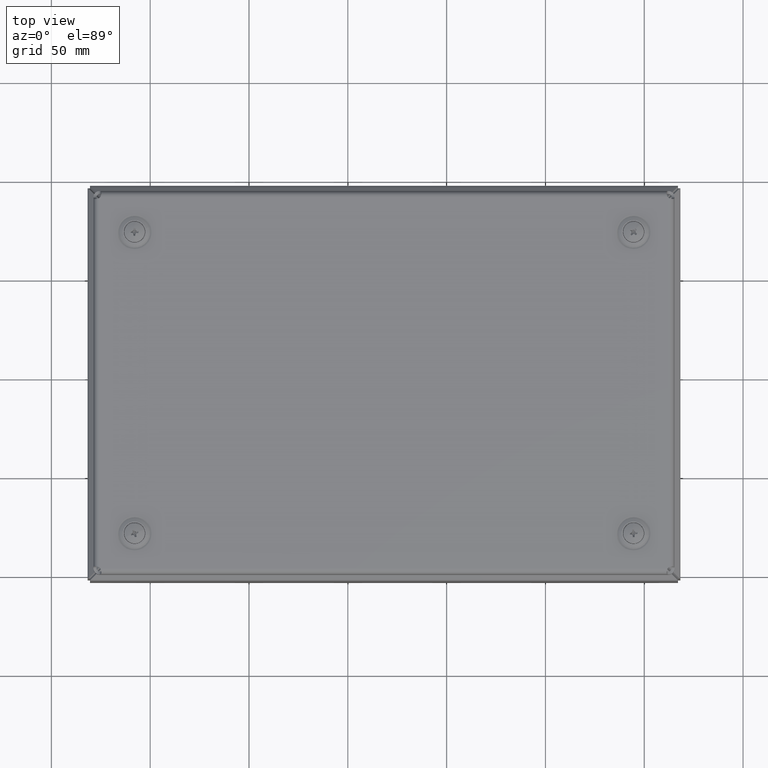
[diagram: clean part render]
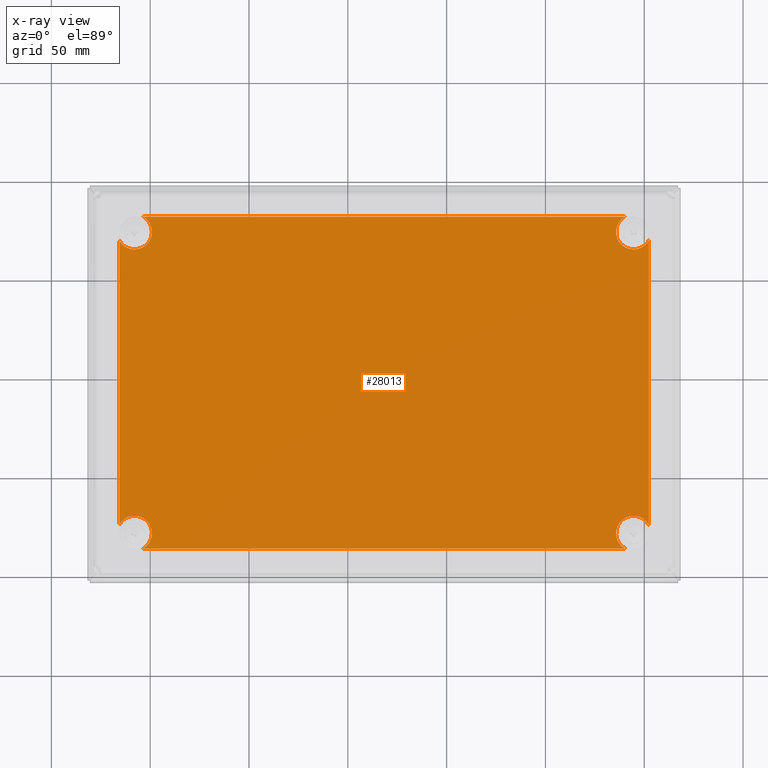
[diagram: x-ray — body ghosted, one internal face saturated and labeled with its STEP entity id]
A machine part, top view, then the same camera in x-ray: the body is ghosted and one INTERNAL B-rep face — a face not visible from any outside direction — is saturated and labeled: STEP entity #28013.
In plain terms, the highlighted planar face has unit normal (0, 0, -1).
Its self-contained STEP definition (entity closure, byte-faithful):
#1873 = CARTESIAN_POINT ( 'NONE',  ( -133.9999999999999400, 72.04468338631409100, 1.500000000000000000 ) ) ;
#1874 = DIRECTION ( 'NONE',  ( 0.0000000000000000000, -1.000000000000000000, 0.0000000000000000000 ) ) ;
#1875 = VECTOR ( 'NONE', #1874, 1000.000000000000000 ) ;
#1876 = CARTESIAN_POINT ( 'NONE',  ( -133.9999999999999400, 79.00000000000001400, 1.499999999999903400 ) ) ;
#1877 = LINE ( 'NONE', #1876, #1875 ) ;
#2042 = CARTESIAN_POINT ( 'NONE',  ( -126.2500000000000300, -76.24999999999998600, 1.500000000000000000 ) ) ;
#2063 = CARTESIAN_POINT ( 'NONE',  ( 126.2500000000000300, -67.43256342118972700, 1.499999999971578300 ) ) ;
#2069 = CARTESIAN_POINT ( 'NONE',  ( -133.9999999999999400, -72.04468338631411900, 1.500000000000000000 ) ) ;
#2075 = DIRECTION ( 'NONE',  ( 1.000000000000000000, 0.0000000000000000000, 0.0000000000000000000 ) ) ;
#2076 = DIRECTION ( 'NONE',  ( 0.0000000000000000000, 0.0000000000000000000, 1.000000000000000000 ) ) ;
#2090 = AXIS2_PLACEMENT_3D ( 'NONE', #2042, #2076, #2075 ) ;
#2091 = CIRCLE ( 'NONE', #2090, 8.817436578810260900 ) ;
#2163 = CARTESIAN_POINT ( 'NONE',  ( -126.2500000000000300, -67.43256342118972700, 1.499999999971578300 ) ) ;
#2164 = DIRECTION ( 'NONE',  ( 1.000000000000000000, 0.0000000000000000000, 0.0000000000000000000 ) ) ;
#2165 = VECTOR ( 'NONE', #2164, 1000.000000000000000 ) ;
#2166 = CARTESIAN_POINT ( 'NONE',  ( -128.9999999999998900, -83.99999999999998600, 1.499999999999903400 ) ) ;
#2167 = LINE ( 'NONE', #2166, #2165 ) ;
#2168 = DIRECTION ( 'NONE',  ( 1.000000000000000000, 0.0000000000000000000, 0.0000000000000000000 ) ) ;
#2169 = DIRECTION ( 'NONE',  ( 0.0000000000000000000, 0.0000000000000000000, 1.000000000000000000 ) ) ;
#2170 = CARTESIAN_POINT ( 'NONE',  ( -159.9999999999999700, -109.9999999999999900, 1.500000000000000000 ) ) ;
#2171 = AXIS2_PLACEMENT_3D ( 'NONE', #2170, #2169, #2168 ) ;
#2173 = PLANE ( 'NONE',  #2171 ) ;
#2174 = FACE_OUTER_BOUND ( 'NONE', #28015, .T. ) ;
#2276 = DIRECTION ( 'NONE',  ( 0.0000000000000000000, 0.0000000000000000000, 1.000000000000000000 ) ) ;
#2277 = CARTESIAN_POINT ( 'NONE',  ( 126.2500000000000300, -76.24999999999998600, 1.500000000000000000 ) ) ;
#2278 = AXIS2_PLACEMENT_3D ( 'NONE', #2277, #2276, #2325 ) ;
#2279 = CIRCLE ( 'NONE', #2278, 8.817436578810260900 ) ;
#2320 = CARTESIAN_POINT ( 'NONE',  ( 122.0446833863143200, -83.99999999999998600, 1.500000000000000000 ) ) ;
#2325 = DIRECTION ( 'NONE',  ( 1.000000000000000000, 0.0000000000000000000, 0.0000000000000000000 ) ) ;
#5359 = VERTEX_POINT ( 'NONE', #13428 ) ;
#5628 = VERTEX_POINT ( 'NONE', #13909 ) ;
#5635 = EDGE_CURVE ( 'NONE', #5359, #5628, #13966, .T. ) ;
#5671 = ORIENTED_EDGE ( 'NONE', *, *, #5635, .T. ) ;
#5728 = EDGE_CURVE ( 'NONE', #5359, #5777, #14134, .T. ) ;
#5767 = ORIENTED_EDGE ( 'NONE', *, *, #5728, .F. ) ;
#5777 = VERTEX_POINT ( 'NONE', #14170 ) ;
#5784 = EDGE_CURVE ( 'NONE', #5777, #7360, #14228, .T. ) ;
#5791 = ORIENTED_EDGE ( 'NONE', *, *, #5784, .F. ) ;
#5802 = ORIENTED_EDGE ( 'NONE', *, *, #5803, .F. ) ;
#5803 = EDGE_CURVE ( 'NONE', #27862, #5628, #14260, .T. ) ;
#6156 = ORIENTED_EDGE ( 'NONE', *, *, #6157, .F. ) ;
#6157 = EDGE_CURVE ( 'NONE', #7840, #27969, #14919, .T. ) ;
#6171 = ORIENTED_EDGE ( 'NONE', *, *, #6172, .F. ) ;
#6172 = EDGE_CURVE ( 'NONE', #7360, #27949, #14890, .T. ) ;
#7360 = VERTEX_POINT ( 'NONE', #17469 ) ;
#7458 = ORIENTED_EDGE ( 'NONE', *, *, #28098, .F. ) ;
#7840 = VERTEX_POINT ( 'NONE', #19032 ) ;
#13428 = CARTESIAN_POINT ( 'NONE',  ( 122.0446833863144600, 84.00000000000002800, 1.500000000000000000 ) ) ;
#13909 = CARTESIAN_POINT ( 'NONE',  ( -122.0446833863144600, 84.00000000000002800, 1.500000000000000000 ) ) ;
#13963 = DIRECTION ( 'NONE',  ( -1.000000000000000000, 0.0000000000000000000, 0.0000000000000000000 ) ) ;
#13964 = VECTOR ( 'NONE', #13963, 1000.000000000000000 ) ;
#13965 = CARTESIAN_POINT ( 'NONE',  ( 128.9999999999998900, 84.00000000000002800, 1.499999999999903400 ) ) ;
#13966 = LINE ( 'NONE', #13965, #13964 ) ;
#14130 = DIRECTION ( 'NONE',  ( 1.000000000000000000, 0.0000000000000000000, 0.0000000000000000000 ) ) ;
#14131 = DIRECTION ( 'NONE',  ( 0.0000000000000000000, 0.0000000000000000000, 1.000000000000000000 ) ) ;
#14132 = CARTESIAN_POINT ( 'NONE',  ( 126.2500000000000300, 76.24999999999995700, 1.500000000000000000 ) ) ;
#14133 = AXIS2_PLACEMENT_3D ( 'NONE', #14132, #14131, #14130 ) ;
#14134 = CIRCLE ( 'NONE', #14133, 8.817436578810260900 ) ;
#14170 = CARTESIAN_POINT ( 'NONE',  ( 133.9999999999999100, 72.04468338631404800, 1.500000000000000000 ) ) ;
#14225 = DIRECTION ( 'NONE',  ( 1.920801080666361400E-016, -1.000000000000000000, 0.0000000000000000000 ) ) ;
#14226 = VECTOR ( 'NONE', #14225, 1000.000000000000000 ) ;
#14227 = CARTESIAN_POINT ( 'NONE',  ( 133.9999999999999100, 78.99999999999998600, 1.499999999999903400 ) ) ;
#14228 = LINE ( 'NONE', #14227, #14226 ) ;
#14257 = DIRECTION ( 'NONE',  ( 1.000000000000000000, 0.0000000000000000000, 0.0000000000000000000 ) ) ;
#14258 = DIRECTION ( 'NONE',  ( 0.0000000000000000000, 0.0000000000000000000, 1.000000000000000000 ) ) ;
#14259 = AXIS2_PLACEMENT_3D ( 'NONE', #14265, #14258, #14257 ) ;
#14260 = CIRCLE ( 'NONE', #14259, 8.817436578810260900 ) ;
#14265 = CARTESIAN_POINT ( 'NONE',  ( -126.2500000000000300, 76.24999999999995700, 1.500000000000000000 ) ) ;
#14888 = CARTESIAN_POINT ( 'NONE',  ( 126.2500000000000300, -76.24999999999998600, 1.500000000000000000 ) ) ;
#14889 = AXIS2_PLACEMENT_3D ( 'NONE', #14888, #14947, #14946 ) ;
#14890 = CIRCLE ( 'NONE', #14889, 8.817436578810260900 ) ;
#14915 = DIRECTION ( 'NONE',  ( 1.000000000000000000, 0.0000000000000000000, 0.0000000000000000000 ) ) ;
#14916 = DIRECTION ( 'NONE',  ( 0.0000000000000000000, 0.0000000000000000000, 1.000000000000000000 ) ) ;
#14917 = CARTESIAN_POINT ( 'NONE',  ( -126.2500000000000300, -76.24999999999998600, 1.500000000000000000 ) ) ;
#14918 = AXIS2_PLACEMENT_3D ( 'NONE', #14917, #14916, #14915 ) ;
#14919 = CIRCLE ( 'NONE', #14918, 8.817436578810260900 ) ;
#14946 = DIRECTION ( 'NONE',  ( 1.000000000000000000, 0.0000000000000000000, 0.0000000000000000000 ) ) ;
#14947 = DIRECTION ( 'NONE',  ( 0.0000000000000000000, 0.0000000000000000000, 1.000000000000000000 ) ) ;
#17469 = CARTESIAN_POINT ( 'NONE',  ( 133.9999999999999400, -72.04468338631411900, 1.500000000000000000 ) ) ;
#18846 = ORIENTED_EDGE ( 'NONE', *, *, #27944, .F. ) ;
#19032 = CARTESIAN_POINT ( 'NONE',  ( -122.0446833863143200, -83.99999999999998600, 1.500000000000000000 ) ) ;
#27854 = EDGE_CURVE ( 'NONE', #27862, #27946, #1877, .T. ) ;
#27855 = ORIENTED_EDGE ( 'NONE', *, *, #27854, .T. ) ;
#27862 = VERTEX_POINT ( 'NONE', #1873 ) ;
#27944 = EDGE_CURVE ( 'NONE', #27969, #27946, #2091, .T. ) ;
#27946 = VERTEX_POINT ( 'NONE', #2069 ) ;
#27949 = VERTEX_POINT ( 'NONE', #2063 ) ;
#27969 = VERTEX_POINT ( 'NONE', #2163 ) ;
#28012 = ORIENTED_EDGE ( 'NONE', *, *, #28014, .T. ) ;
#28013 = ADVANCED_FACE ( 'NONE', ( #2174 ), #2173, .T. ) ;
#28014 = EDGE_CURVE ( 'NONE', #7840, #28105, #2167, .T. ) ;
#28015 = EDGE_LOOP ( 'NONE', ( #28012, #7458, #6171, #5791, #5767, #5671, #5802, #27855, #18846, #6156 ) ) ;
#28098 = EDGE_CURVE ( 'NONE', #27949, #28105, #2279, .T. ) ;
#28105 = VERTEX_POINT ( 'NONE', #2320 ) ;